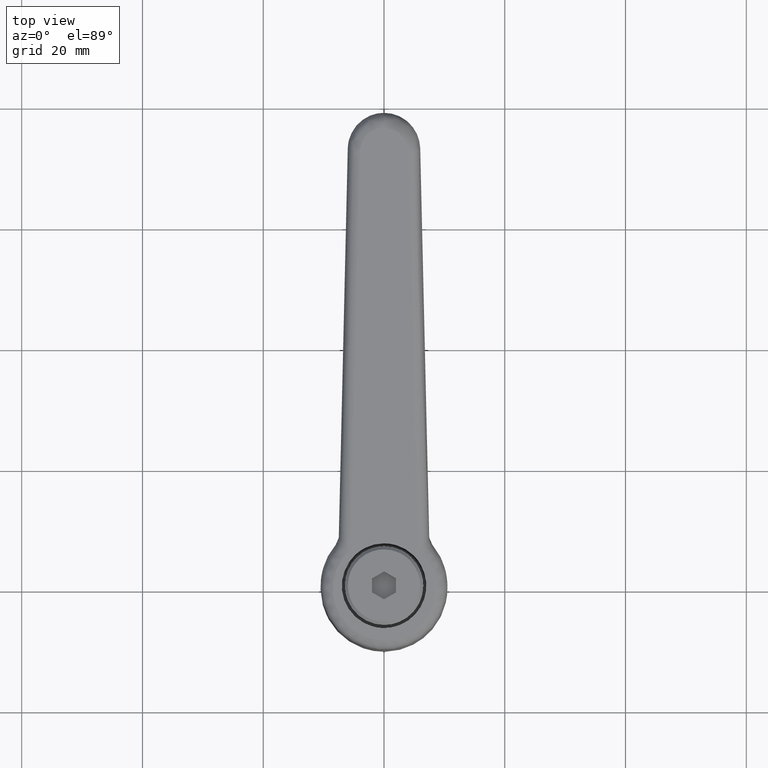
[diagram: clean part render]
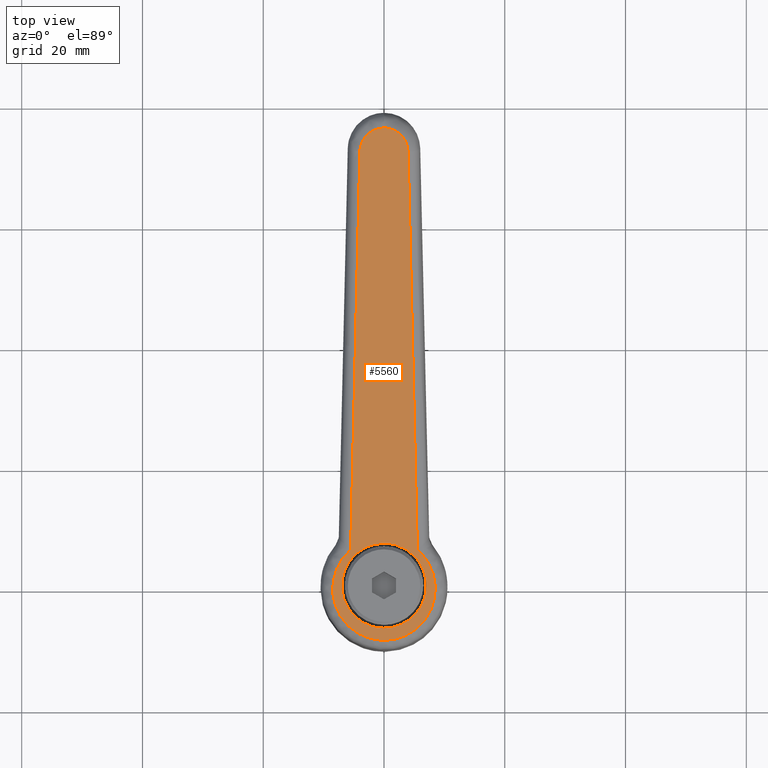
[diagram: same view with one face highlighted and labeled with its STEP entity id]
A machine part, top view. The second image highlights one B-rep face of the part: STEP entity #5560.
In plain terms, the highlighted face is a freeform B-spline surface patch.
Its self-contained STEP definition (entity closure, byte-faithful):
#2045=CARTESIAN_POINT('',(5.160941357670028,4.729131453310536,27.861636781501890));
#2046=VERTEX_POINT('',#2045);
#2052=CARTESIAN_POINT('',(-7.0,0.0,24.563752396048091));
#2053=VERTEX_POINT('',#2052);
#2054=CARTESIAN_POINT('',(5.160941357670029,4.729131453310538,27.861636781501886));
#2055=CARTESIAN_POINT('',(3.080073716241349,7.0,27.297333352924483));
#2056=CARTESIAN_POINT('',(1.285837E-015,7.0,26.462058622450350));
#2057=CARTESIAN_POINT('',(-6.999999999999999,6.999999999999999,24.563752396048088));
#2058=CARTESIAN_POINT('',(-7.0,0.0,24.563752396048091));
#2066=(BOUNDED_CURVE()B_SPLINE_CURVE(2,(#2054,#2055,#2056,#2057,#2058),.UNSPECIFIED.,.F.,.U.)B_SPLINE_CURVE_WITH_KNOTS((3,2,3),(0.618415209084125,0.750000000000000,1.0),.UNSPECIFIED.)CURVE()GEOMETRIC_REPRESENTATION_ITEM()RATIONAL_B_SPLINE_CURVE((0.853959780837949,0.845838828167017,1.0,0.707106781186548,1.0))REPRESENTATION_ITEM(''));
#2067=EDGE_CURVE('',#2046,#2053,#2066,.T.);
#2069=CARTESIAN_POINT('',(5.016556884577492,-4.882023865549834,27.822478384855081));
#2070=VERTEX_POINT('',#2069);
#2071=CARTESIAN_POINT('',(-7.0,0.0,24.563752396048091));
#2072=CARTESIAN_POINT('',(-6.999999920628393,-6.999999918441170,24.563751794329860));
#2073=CARTESIAN_POINT('',(0.000000289103453,-6.999999702929800,26.462056430749499));
#2074=CARTESIAN_POINT('',(2.955380237191736,-6.999999611941519,27.263515186427529));
#2075=CARTESIAN_POINT('',(5.016556884577494,-4.882023865549834,27.822478384855078));
#2083=(BOUNDED_CURVE()B_SPLINE_CURVE(2,(#2071,#2072,#2073,#2074,#2075),.UNSPECIFIED.,.F.,.U.)B_SPLINE_CURVE_WITH_KNOTS((3,2,3),(0.0,0.250000000000000,0.377050637463121),.UNSPECIFIED.)CURVE()GEOMETRIC_REPRESENTATION_ITEM()RATIONAL_B_SPLINE_CURVE((1.0,0.707106781186548,1.0,0.851150919364503,0.853592803373320))REPRESENTATION_ITEM(''));
#2084=EDGE_CURVE('',#2053,#2070,#2083,.T.);
#2121=CARTESIAN_POINT('',(7.0,-8.572244E-016,28.360364848852608));
#2122=VERTEX_POINT('',#2121);
#2123=CARTESIAN_POINT('',(5.016556884577494,-4.882023865549834,27.822478384855078));
#2124=CARTESIAN_POINT('',(7.000000205554651,-2.843923514713702,28.360363290537425));
#2125=CARTESIAN_POINT('',(7.0,-8.572244E-016,28.360364848852608));
#2133=(BOUNDED_CURVE()B_SPLINE_CURVE(2,(#2123,#2124,#2125),.UNSPECIFIED.,.F.,.U.)B_SPLINE_CURVE_WITH_KNOTS((3,3),(0.377050637463121,0.500000000000000),.UNSPECIFIED.)CURVE()GEOMETRIC_REPRESENTATION_ITEM()RATIONAL_B_SPLINE_CURVE((0.853592803373320,0.855955861822045,1.0))REPRESENTATION_ITEM(''));
#2134=EDGE_CURVE('',#2070,#2122,#2133,.T.);
#2136=CARTESIAN_POINT('',(7.0,-8.572244E-016,28.360364848852608));
#2137=CARTESIAN_POINT('',(6.999999999999999,2.722151122972383,28.360364848852608));
#2138=CARTESIAN_POINT('',(5.160941357670029,4.729131453310538,27.861636781501886));
#2146=(BOUNDED_CURVE()B_SPLINE_CURVE(2,(#2136,#2137,#2138),.UNSPECIFIED.,.F.,.U.)B_SPLINE_CURVE_WITH_KNOTS((3,3),(0.500000000000000,0.618415209084126),.UNSPECIFIED.)CURVE()GEOMETRIC_REPRESENTATION_ITEM()RATIONAL_B_SPLINE_CURVE((1.0,0.861267953019529,0.853959780837949))REPRESENTATION_ITEM(''));
#2147=EDGE_CURVE('',#2122,#2046,#2146,.T.);
#4581=CARTESIAN_POINT('',(5.940270675266100,-5.519973294428710,28.072980452360650));
#4582=VERTEX_POINT('',#4581);
#4830=CARTESIAN_POINT('',(5.940270675266040,5.519973294428770,28.072980452360650));
#4831=VERTEX_POINT('',#4830);
#5201=CARTESIAN_POINT('',(5.940270675266040,5.519973294428770,28.072980452360650));
#5202=CARTESIAN_POINT('',(2.092957256438765,10.025071493159286,27.029640592663412));
#5203=CARTESIAN_POINT('',(-3.465254488648613,7.974702619111119,25.522328026468902));
#5204=CARTESIAN_POINT('',(-9.023466233735919,5.924333745062977,24.015015460274405));
#5205=CARTESIAN_POINT('',(-9.023466233735919,-9.606188E-014,24.015015460274409));
#5206=CARTESIAN_POINT('',(-9.023466233735919,-5.924333745063118,24.015015460274405));
#5207=CARTESIAN_POINT('',(-3.465254488648433,-7.974702619111184,25.522328026468951));
#5208=CARTESIAN_POINT('',(2.092957256438992,-10.025071493159230,27.029640592663473));
#5209=CARTESIAN_POINT('',(5.940270675266100,-5.519973294428710,28.072980452360650));
#5217=(BOUNDED_CURVE()B_SPLINE_CURVE(2,(#5201,#5202,#5203,#5204,#5205,#5206,#5207,#5208,#5209),.UNSPECIFIED.,.F.,.U.)B_SPLINE_CURVE_WITH_KNOTS((3,2,2,2,3),(0.0,0.250000000000000,0.500000000000000,0.750000000000000,1.0),.UNSPECIFIED.)CURVE()GEOMETRIC_REPRESENTATION_ITEM()RATIONAL_B_SPLINE_CURVE((1.0,0.820394032118735,1.0,0.820394032118735,1.0,0.820394032118735,1.0,0.820394032118735,1.0))REPRESENTATION_ITEM(''));
#5218=EDGE_CURVE('',#4831,#4582,#5217,.T.);
#5247=CARTESIAN_POINT('',(71.569214214229888,3.998934980117755,45.870670759820300));
#5248=VERTEX_POINT('',#5247);
#5249=CARTESIAN_POINT('',(71.569214214229888,3.998934980117755,45.870670759820300));
#5250=CARTESIAN_POINT('',(5.940270675266040,5.519973294428770,28.072980452360650));
#5251=QUASI_UNIFORM_CURVE('',1,(#5249,#5250),.UNSPECIFIED.,.F.,.U.);
#5252=EDGE_CURVE('',#5248,#4831,#5251,.T.);
#5284=CARTESIAN_POINT('',(71.569214214229888,-3.998934980117811,45.870670759820300));
#5285=VERTEX_POINT('',#5284);
#5286=CARTESIAN_POINT('',(5.940270675266100,-5.519973294428710,28.072980452360650));
#5287=CARTESIAN_POINT('',(71.569214214229888,-3.998934980117811,45.870670759820300));
#5288=QUASI_UNIFORM_CURVE('',1,(#5286,#5287),.UNSPECIFIED.,.F.,.U.);
#5289=EDGE_CURVE('',#4582,#5285,#5288,.T.);
#5392=CARTESIAN_POINT('',(75.476533766264112,0.0,46.930283478987398));
#5393=VERTEX_POINT('',#5392);
#5423=CARTESIAN_POINT('',(75.476533766264112,0.0,46.930283478987398));
#5424=CARTESIAN_POINT('',(75.476533766264112,3.908373067859956,46.930283478987413));
#5425=CARTESIAN_POINT('',(71.569214214229888,3.998934980117755,45.870670759820300));
#5433=(BOUNDED_CURVE()B_SPLINE_CURVE(2,(#5423,#5424,#5425),.UNSPECIFIED.,.F.,.U.)CURVE()GEOMETRIC_REPRESENTATION_ITEM()QUASI_UNIFORM_CURVE()RATIONAL_B_SPLINE_CURVE((1.0,0.715251743091706,1.0))REPRESENTATION_ITEM(''));
#5434=EDGE_CURVE('',#5393,#5248,#5433,.T.);
#5478=CARTESIAN_POINT('',(71.569214214229888,-3.998934980117756,45.870670759820293));
#5479=CARTESIAN_POINT('',(75.476542396383621,-3.908377437192929,46.930285819360201));
#5480=CARTESIAN_POINT('',(75.476533766264112,0.0,46.930283478987398));
#5488=(BOUNDED_CURVE()B_SPLINE_CURVE(2,(#5478,#5479,#5480),.UNSPECIFIED.,.F.,.U.)CURVE()GEOMETRIC_REPRESENTATION_ITEM()QUASI_UNIFORM_CURVE()RATIONAL_B_SPLINE_CURVE((1.0,0.715250971503600,1.0))REPRESENTATION_ITEM(''));
#5489=EDGE_CURVE('',#5285,#5393,#5488,.T.);
#5542=CARTESIAN_POINT('',(79.697307016035609,-9.333844789118212,48.074900641883580));
#5543=CARTESIAN_POINT('',(-13.244243260951450,-9.333844789118212,22.870397272985969));
#5544=CARTESIAN_POINT('',(79.697307016035609,9.333844330823748,48.074900641883580));
#5545=CARTESIAN_POINT('',(-13.244243260951450,9.333844330823748,22.870397272985969));
#5546=B_SPLINE_SURFACE_WITH_KNOTS('',1,1,((#5542,#5544),(#5543,#5545)),.UNSPECIFIED.,.F.,.F.,.U.,(2,2),(2,2),(0.0,96.298487828015695),(0.0,18.667689119941961),.UNSPECIFIED.);
#5547=ORIENTED_EDGE('',*,*,#5252,.T.);
#5548=ORIENTED_EDGE('',*,*,#5218,.T.);
#5549=ORIENTED_EDGE('',*,*,#5289,.T.);
#5550=ORIENTED_EDGE('',*,*,#5489,.T.);
#5551=ORIENTED_EDGE('',*,*,#5434,.T.);
#5552=EDGE_LOOP('',(#5547,#5548,#5549,#5550,#5551));
#5553=FACE_OUTER_BOUND('',#5552,.T.);
#5554=ORIENTED_EDGE('',*,*,#2147,.F.);
#5555=ORIENTED_EDGE('',*,*,#2134,.F.);
#5556=ORIENTED_EDGE('',*,*,#2084,.F.);
#5557=ORIENTED_EDGE('',*,*,#2067,.F.);
#5558=EDGE_LOOP('',(#5554,#5555,#5556,#5557));
#5559=FACE_BOUND('',#5558,.T.);
#5560=ADVANCED_FACE('',(#5553,#5559),#5546,.F.);